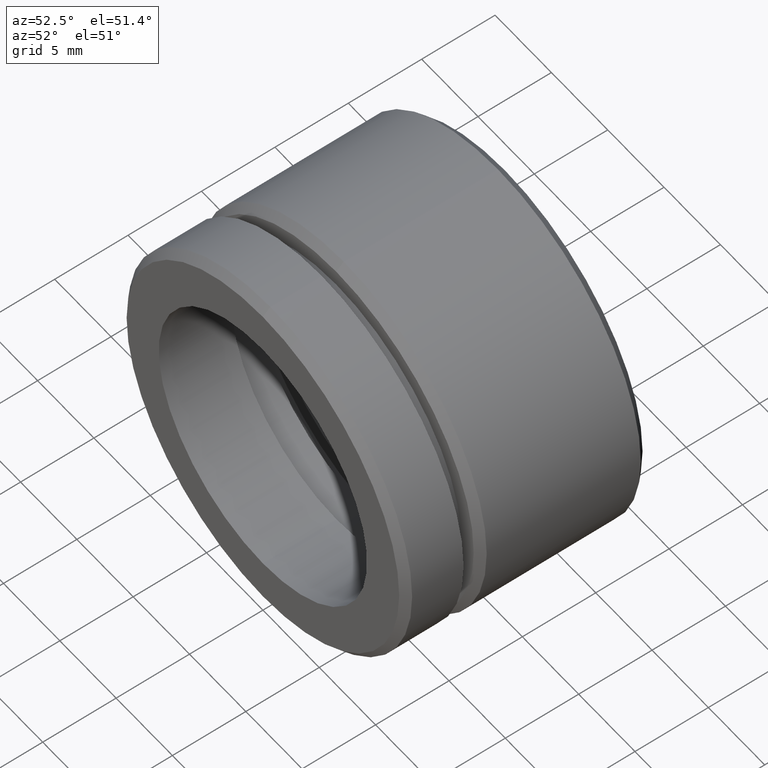
[diagram: clean part render]
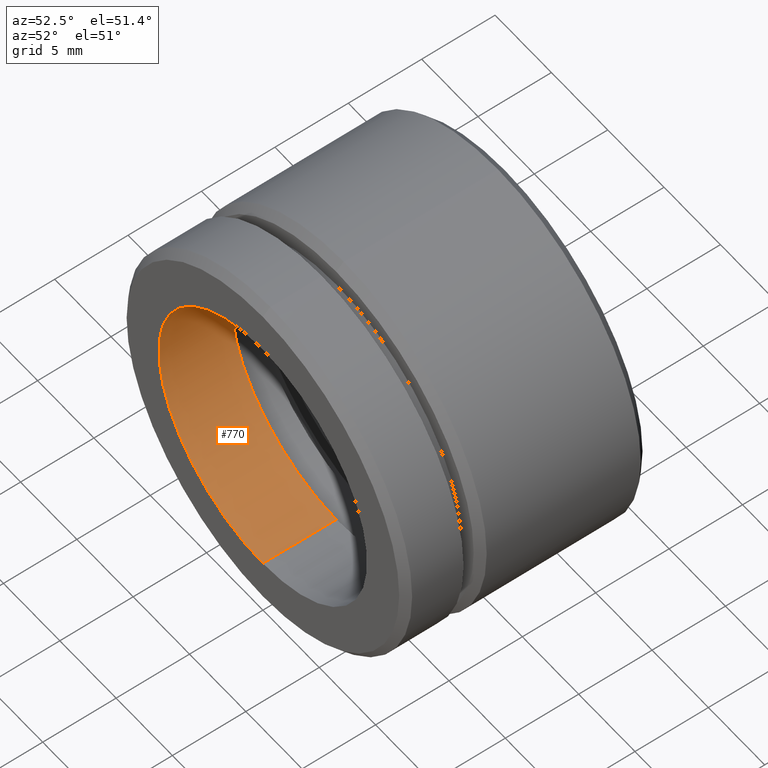
[diagram: same view with one face highlighted and labeled with its STEP entity id]
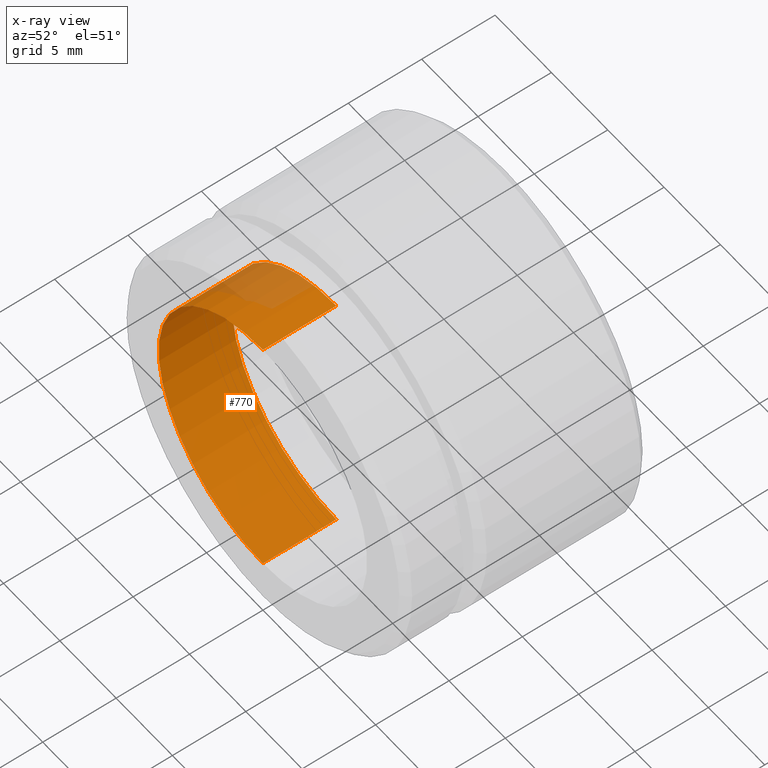
[diagram: x-ray of the same camera — body ghosted, the highlighted face saturated]
A machine part, auxiliary view. The second image highlights one B-rep face of the part: STEP entity #770.
The next image is the same camera in x-ray: the body ghosted, the highlighted face saturated — about 9% of this face is hidden behind the body in this view.
In plain terms, the highlighted cylindrical surface (partial cylindrical patch) has radius 9.25 mm, axis along (-0, -1, -0).
Its self-contained STEP definition (entity closure, byte-faithful):
#1 = CARTESIAN_POINT ( 'NONE',  ( 0.0000000000000000000, 0.0000000000000000000, -9.250000000000000000 ) ) ;
#2 = DIRECTION ( 'NONE',  ( -0.0000000000000000000, -1.000000000000000000, -0.0000000000000000000 ) ) ;
#4 = CARTESIAN_POINT ( 'NONE',  ( 0.0000000000000000000, 5.000000000000000000, 0.0000000000000000000 ) ) ;
#35 = ORIENTED_EDGE ( 'NONE', *, *, #651, .T. ) ;
#133 = CARTESIAN_POINT ( 'NONE',  ( 0.0000000000000000000, 0.0000000000000000000, 0.0000000000000000000 ) ) ;
#180 = EDGE_CURVE ( 'NONE', #634, #186, #517, .T. ) ;
#186 = VERTEX_POINT ( 'NONE', #585 ) ;
#201 = VERTEX_POINT ( 'NONE', #1 ) ;
#234 = AXIS2_PLACEMENT_3D ( 'NONE', #738, #241, #741 ) ;
#237 = VECTOR ( 'NONE', #548, 1000.000000000000000 ) ;
#238 = CARTESIAN_POINT ( 'NONE',  ( 1.132798289211301700E-015, 0.0000000000000000000, 9.250000000000000000 ) ) ;
#241 = DIRECTION ( 'NONE',  ( -0.0000000000000000000, -1.000000000000000000, -0.0000000000000000000 ) ) ;
#309 = CARTESIAN_POINT ( 'NONE',  ( 1.132798289211301700E-015, 0.0000000000000000000, 9.250000000000000000 ) ) ;
#381 = FACE_OUTER_BOUND ( 'NONE', #592, .T. ) ;
#407 = VERTEX_POINT ( 'NONE', #309 ) ;
#448 = CYLINDRICAL_SURFACE ( 'NONE', #707, 9.250000000000000000 ) ;
#484 = CARTESIAN_POINT ( 'NONE',  ( 1.132798289211301700E-015, 5.000000000000000000, 9.250000000000000000 ) ) ;
#517 = CIRCLE ( 'NONE', #584, 9.250000000000000000 ) ;
#529 = DIRECTION ( 'NONE',  ( 0.0000000000000000000, 0.0000000000000000000, -1.000000000000000000 ) ) ;
#544 = DIRECTION ( 'NONE',  ( -0.0000000000000000000, -1.000000000000000000, -0.0000000000000000000 ) ) ;
#548 = DIRECTION ( 'NONE',  ( -0.0000000000000000000, -1.000000000000000000, -0.0000000000000000000 ) ) ;
#551 = CARTESIAN_POINT ( 'NONE',  ( 0.0000000000000000000, 0.0000000000000000000, -9.250000000000000000 ) ) ;
#584 = AXIS2_PLACEMENT_3D ( 'NONE', #4, #2, #766 ) ;
#585 = CARTESIAN_POINT ( 'NONE',  ( 0.0000000000000000000, 5.000000000000000000, -9.250000000000000000 ) ) ;
#589 = ORIENTED_EDGE ( 'NONE', *, *, #685, .F. ) ;
#592 = EDGE_LOOP ( 'NONE', ( #623, #610, #35, #589 ) ) ;
#610 = ORIENTED_EDGE ( 'NONE', *, *, #637, .T. ) ;
#623 = ORIENTED_EDGE ( 'NONE', *, *, #180, .F. ) ;
#634 = VERTEX_POINT ( 'NONE', #484 ) ;
#637 = EDGE_CURVE ( 'NONE', #634, #407, #730, .T. ) ;
#651 = EDGE_CURVE ( 'NONE', #407, #201, #706, .T. ) ;
#685 = EDGE_CURVE ( 'NONE', #186, #201, #694, .T. ) ;
#694 = LINE ( 'NONE', #551, #237 ) ;
#695 = DIRECTION ( 'NONE',  ( -0.0000000000000000000, -1.000000000000000000, -0.0000000000000000000 ) ) ;
#706 = CIRCLE ( 'NONE', #234, 9.250000000000000000 ) ;
#707 = AXIS2_PLACEMENT_3D ( 'NONE', #133, #544, #529 ) ;
#730 = LINE ( 'NONE', #238, #737 ) ;
#737 = VECTOR ( 'NONE', #695, 1000.000000000000000 ) ;
#738 = CARTESIAN_POINT ( 'NONE',  ( 0.0000000000000000000, 0.0000000000000000000, 0.0000000000000000000 ) ) ;
#741 = DIRECTION ( 'NONE',  ( 0.0000000000000000000, 0.0000000000000000000, -1.000000000000000000 ) ) ;
#766 = DIRECTION ( 'NONE',  ( 0.0000000000000000000, 0.0000000000000000000, -1.000000000000000000 ) ) ;
#770 = ADVANCED_FACE ( 'NONE', ( #381 ), #448, .F. ) ;